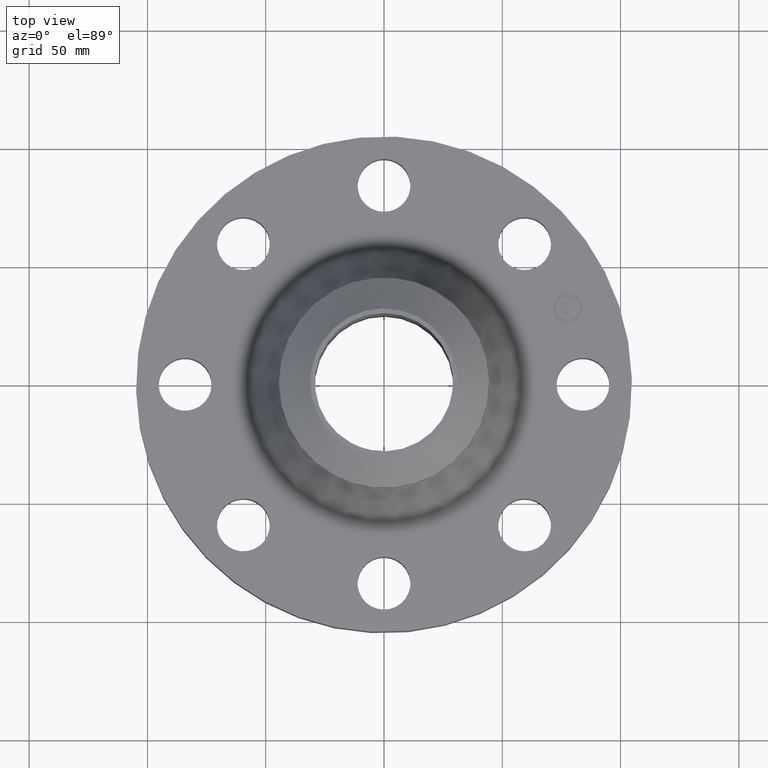
[diagram: clean part render]
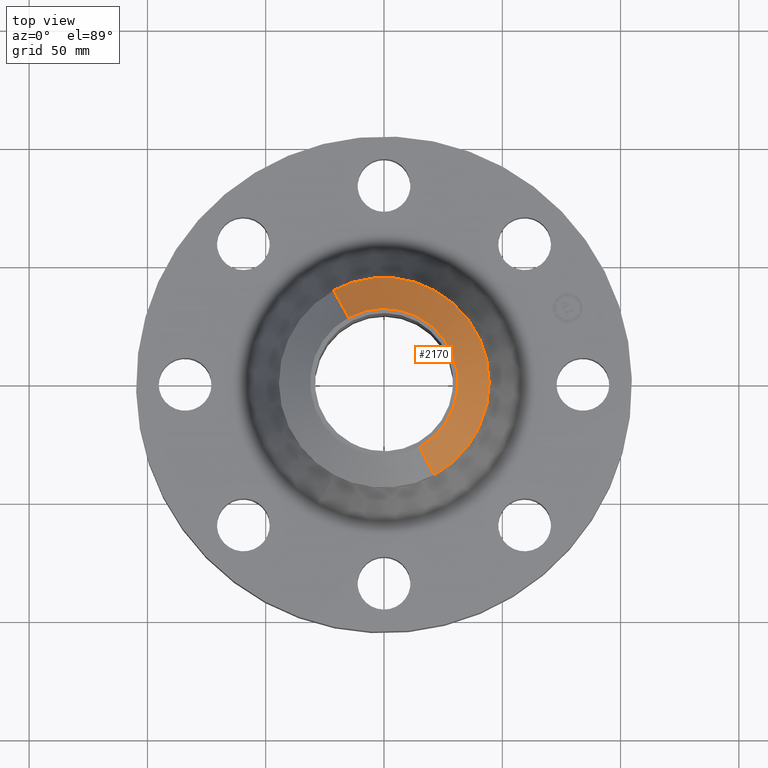
[diagram: same view with one face highlighted and labeled with its STEP entity id]
A machine part, top view. The second image highlights one B-rep face of the part: STEP entity #2170.
In plain terms, the highlighted conical surface has half-angle 52.5 deg.
Its self-contained STEP definition (entity closure, byte-faithful):
#1485=AXIS2_PLACEMENT_3D('Circle Axis2P3D',#1483,#1484,$) ;
#1510=AXIS2_PLACEMENT_3D('Circle Axis2P3D',#1508,#1509,$) ;
#2100=AXIS2_PLACEMENT_3D('Circle Axis2P3D',#2098,#2099,$) ;
#2161=AXIS2_PLACEMENT_3D('Cone Axis2P3D',#2158,#2159,#2160) ;
#1466=CARTESIAN_POINT('Vertex',(0.838994692563,1.53576948332,2.8500232551)) ;
#1480=CARTESIAN_POINT('Vertex',(-0.838994692564,1.53576948332,2.8500232551)) ;
#1483=CARTESIAN_POINT('Axis2P3D Location',(0.,0.,2.8500232551)) ;
#1508=CARTESIAN_POINT('Axis2P3D Location',(0.,0.,2.8500232551)) ;
#1512=CARTESIAN_POINT('Vertex',(0.838994692564,-1.53576948332,2.8500232551)) ;
#2098=CARTESIAN_POINT('Axis2P3D Location',(4.36653687836E-011,2.65217069653E-011,3.25000000001)) ;
#2102=CARTESIAN_POINT('Vertex',(0.589089411806,-1.0783209353,3.25000000001)) ;
#2104=CARTESIAN_POINT('Vertex',(-0.589089411806,1.0783209353,3.25000000001)) ;
#2133=CARTESIAN_POINT('Line Origine',(0.714042052181,-1.3070452093,3.05001162755)) ;
#2138=CARTESIAN_POINT('Line Origine',(-0.714042052181,1.3070452093,3.05001162755)) ;
#2158=CARTESIAN_POINT('Axis2P3D Location',(0.,0.,3.25000000001)) ;
#1484=DIRECTION('Axis2P3D Direction',(-0.,0.,-0.0393700787402)) ;
#1509=DIRECTION('Axis2P3D Direction',(-0.,0.,-0.0393700787402)) ;
#2099=DIRECTION('Axis2P3D Direction',(0.,0.,-0.0393700787402)) ;
#2134=DIRECTION('Vector Direction',(0.014974561121,-0.02741075027,-0.023966985394)) ;
#2139=DIRECTION('Vector Direction',(-0.014974561121,0.02741075027,-0.023966985394)) ;
#2159=DIRECTION('Axis2P3D Direction',(-0.,-0.,-0.0393700787402)) ;
#2160=DIRECTION('Axis2P3D XDirection',(-0.0188750212049,0.0345504945626,0.)) ;
#2135=VECTOR('Line Direction',#2134,0.0393700787402) ;
#2140=VECTOR('Line Direction',#2139,0.0393700787402) ;
#2164=ORIENTED_EDGE('',*,*,#2142,.F.) ;
#2165=ORIENTED_EDGE('',*,*,#2106,.F.) ;
#2166=ORIENTED_EDGE('',*,*,#2137,.T.) ;
#2167=ORIENTED_EDGE('',*,*,#1514,.T.) ;
#2168=ORIENTED_EDGE('',*,*,#1487,.F.) ;
#2170=ADVANCED_FACE('PartBody',(#2169),#2162,.T.) ;
#1486=CIRCLE('generated circle',#1485,1.75000000001) ;
#1511=CIRCLE('generated circle',#1510,1.75000000001) ;
#2101=CIRCLE('generated circle',#2100,1.22874015747) ;
#2162=CONICAL_SURFACE('Cone',#2161,1.22874015748,0.916297857297) ;
#1487=EDGE_CURVE('',#1481,#1467,#1486,.T.) ;
#1514=EDGE_CURVE('',#1513,#1467,#1511,.F.) ;
#2106=EDGE_CURVE('',#2103,#2105,#2101,.F.) ;
#2137=EDGE_CURVE('',#2103,#1513,#2136,.T.) ;
#2142=EDGE_CURVE('',#2105,#1481,#2141,.T.) ;
#2163=EDGE_LOOP('',(#2164,#2165,#2166,#2167,#2168)) ;
#2169=FACE_OUTER_BOUND('',#2163,.T.) ;
#2136=LINE('Line',#2133,#2135) ;
#2141=LINE('Line',#2138,#2140) ;
#1467=VERTEX_POINT('',#1466) ;
#1481=VERTEX_POINT('',#1480) ;
#1513=VERTEX_POINT('',#1512) ;
#2103=VERTEX_POINT('',#2102) ;
#2105=VERTEX_POINT('',#2104) ;